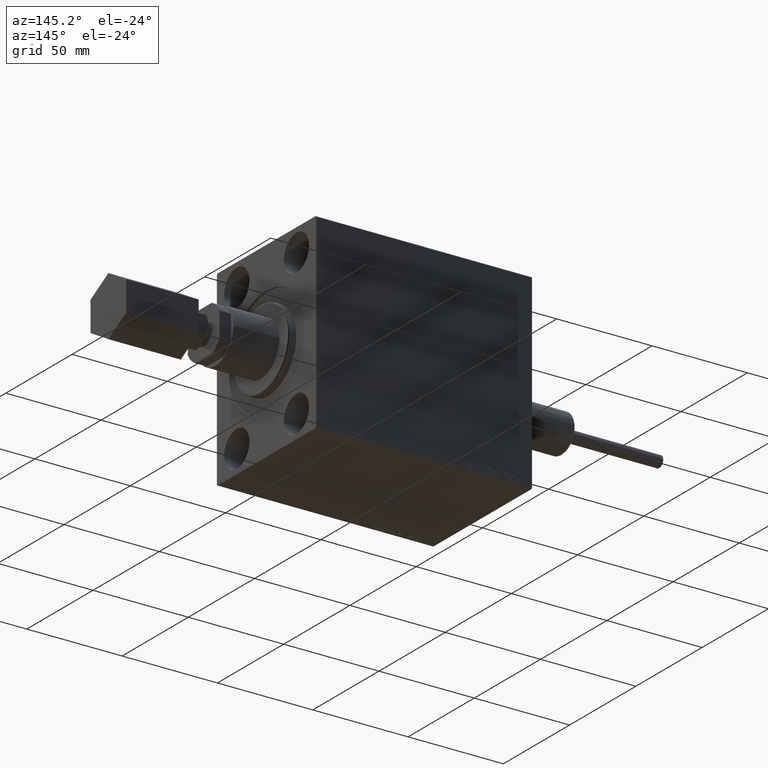
[diagram: clean part render]
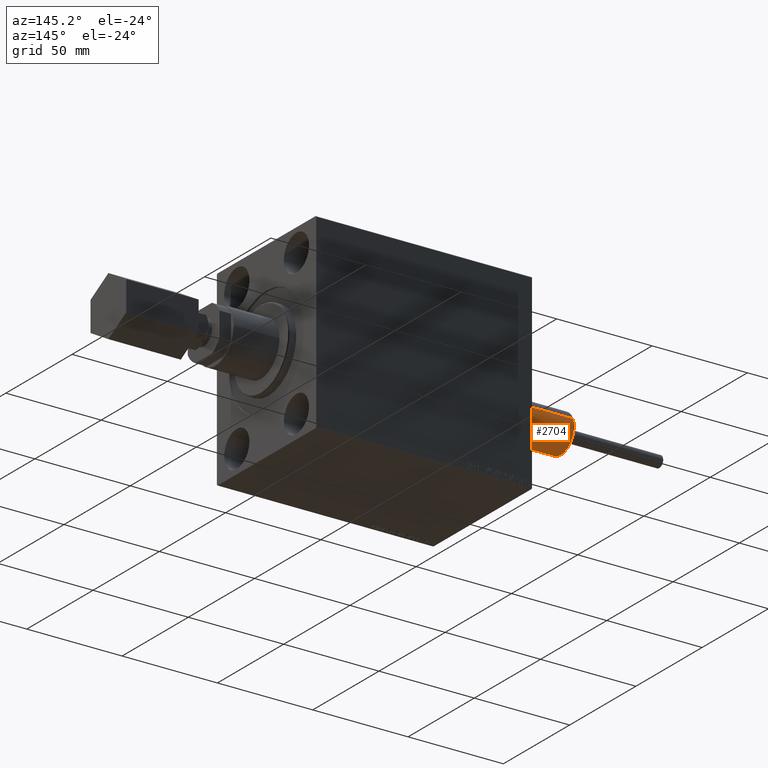
[diagram: same view with one face highlighted and labeled with its STEP entity id]
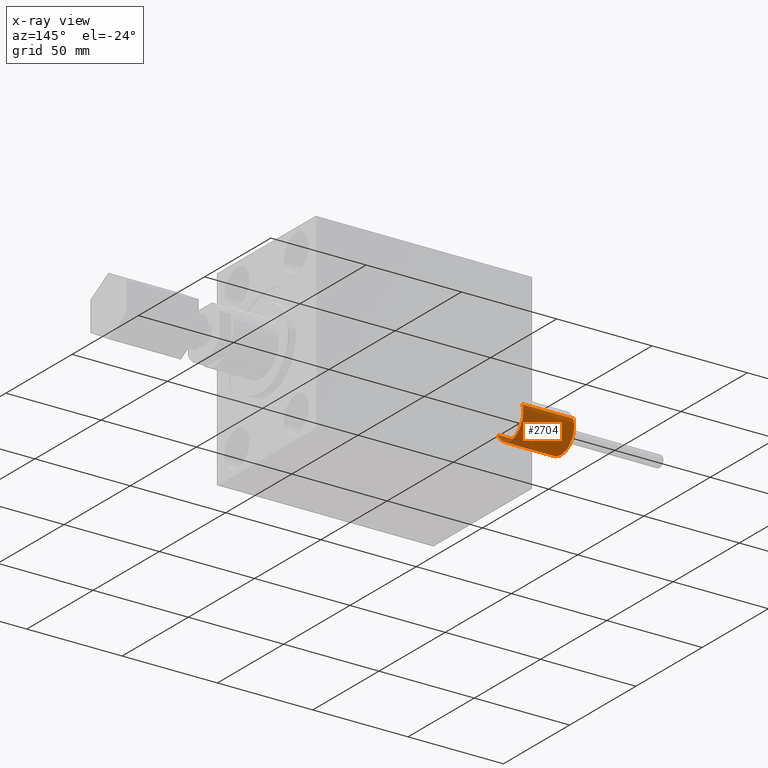
[diagram: x-ray of the same camera — body ghosted, the highlighted face saturated]
A machine part, auxiliary view. The second image highlights one B-rep face of the part: STEP entity #2704.
The next image is the same camera in x-ray: the body ghosted, the highlighted face saturated — about 27% of this face is hidden behind the body in this view.
In plain terms, the highlighted cylindrical surface (edge-blend (fillet) strip) has radius 10 mm, axis along (-1, 0, 0).
Its self-contained STEP definition (entity closure, byte-faithful):
#146 = EDGE_CURVE ( 'NONE', #37273, #21345, #23192, .T. ) ;
#2108 = EDGE_CURVE ( 'NONE', #21345, #40388, #11534, .T. ) ;
#2704 = ADVANCED_FACE ( 'NONE', ( #21424 ), #46985, .T. ) ;
#3247 = VERTEX_POINT ( 'NONE', #3836 ) ;
#3836 = CARTESIAN_POINT ( 'NONE',  ( -10.00000000000000000, 0.000000000000000000, 27.50000000000000000 ) ) ;
#3940 = DIRECTION ( 'NONE',  ( 1.000000000000000000, 0.000000000000000000, 0.000000000000000000 ) ) ;
#5466 = CIRCLE ( 'NONE', #27634, 10.00000000000000000 ) ;
#6478 = ORIENTED_EDGE ( 'NONE', *, *, #33014, .F. ) ;
#7320 = DIRECTION ( 'NONE',  ( -0.000000000000000000, -0.000000000000000000, -1.000000000000000000 ) ) ;
#9673 = DIRECTION ( 'NONE',  ( 1.000000000000000000, 0.000000000000000000, 0.000000000000000000 ) ) ;
#10114 = CARTESIAN_POINT ( 'NONE',  ( -10.00000000000000000, 0.000000000000000000, 27.50000000000000000 ) ) ;
#11534 = CIRCLE ( 'NONE', #30619, 10.00000000000000000 ) ;
#12194 = CARTESIAN_POINT ( 'NONE',  ( 10.00000000000000000, 1.224646799147353256E-15, 27.50000000000000000 ) ) ;
#12298 = AXIS2_PLACEMENT_3D ( 'NONE', #46743, #7320, #31961 ) ;
#16499 = DIRECTION ( 'NONE',  ( -0.000000000000000000, -0.000000000000000000, -1.000000000000000000 ) ) ;
#17290 = LINE ( 'NONE', #10114, #34434 ) ;
#18751 = CARTESIAN_POINT ( 'NONE',  ( 0.000000000000000000, 0.000000000000000000, 27.50000000000000000 ) ) ;
#21345 = VERTEX_POINT ( 'NONE', #25440 ) ;
#21424 = FACE_OUTER_BOUND ( 'NONE', #30315, .T. ) ;
#23044 = DIRECTION ( 'NONE',  ( 0.000000000000000000, 0.000000000000000000, 1.000000000000000000 ) ) ;
#23192 = LINE ( 'NONE', #12194, #37337 ) ;
#25440 = CARTESIAN_POINT ( 'NONE',  ( 10.00000000000000000, 1.224646799147353256E-15, 0.7999999999999986011 ) ) ;
#27010 = CARTESIAN_POINT ( 'NONE',  ( 10.00000000000000000, 1.224646799147353256E-15, 27.50000000000000000 ) ) ;
#27354 = ORIENTED_EDGE ( 'NONE', *, *, #34322, .F. ) ;
#27634 = AXIS2_PLACEMENT_3D ( 'NONE', #18751, #23044, #3940 ) ;
#27852 = DIRECTION ( 'NONE',  ( -0.000000000000000000, -0.000000000000000000, 1.000000000000000000 ) ) ;
#30315 = EDGE_LOOP ( 'NONE', ( #27354, #47119, #43342, #6478 ) ) ;
#30619 = AXIS2_PLACEMENT_3D ( 'NONE', #31428, #27852, #9673 ) ;
#31428 = CARTESIAN_POINT ( 'NONE',  ( 0.000000000000000000, 0.000000000000000000, 0.7999999999999986011 ) ) ;
#31961 = DIRECTION ( 'NONE',  ( -1.000000000000000000, 0.000000000000000000, 0.000000000000000000 ) ) ;
#33014 = EDGE_CURVE ( 'NONE', #3247, #40388, #17290, .T. ) ;
#34322 = EDGE_CURVE ( 'NONE', #37273, #3247, #5466, .T. ) ;
#34434 = VECTOR ( 'NONE', #46424, 1000.000000000000000 ) ;
#34448 = CARTESIAN_POINT ( 'NONE',  ( -10.00000000000000000, 0.000000000000000000, 0.7999999999999986011 ) ) ;
#37273 = VERTEX_POINT ( 'NONE', #27010 ) ;
#37337 = VECTOR ( 'NONE', #16499, 1000.000000000000000 ) ;
#40388 = VERTEX_POINT ( 'NONE', #34448 ) ;
#43342 = ORIENTED_EDGE ( 'NONE', *, *, #2108, .T. ) ;
#46424 = DIRECTION ( 'NONE',  ( -0.000000000000000000, -0.000000000000000000, -1.000000000000000000 ) ) ;
#46743 = CARTESIAN_POINT ( 'NONE',  ( 0.000000000000000000, 0.000000000000000000, 27.50000000000000000 ) ) ;
#46985 = CYLINDRICAL_SURFACE ( 'NONE', #12298, 10.00000000000000000 ) ;
#47119 = ORIENTED_EDGE ( 'NONE', *, *, #146, .T. ) ;